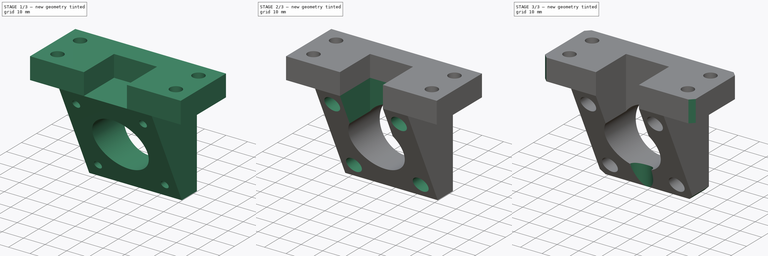
[diagram: build sequence overview — one tinted view per stage of 3, left to right]
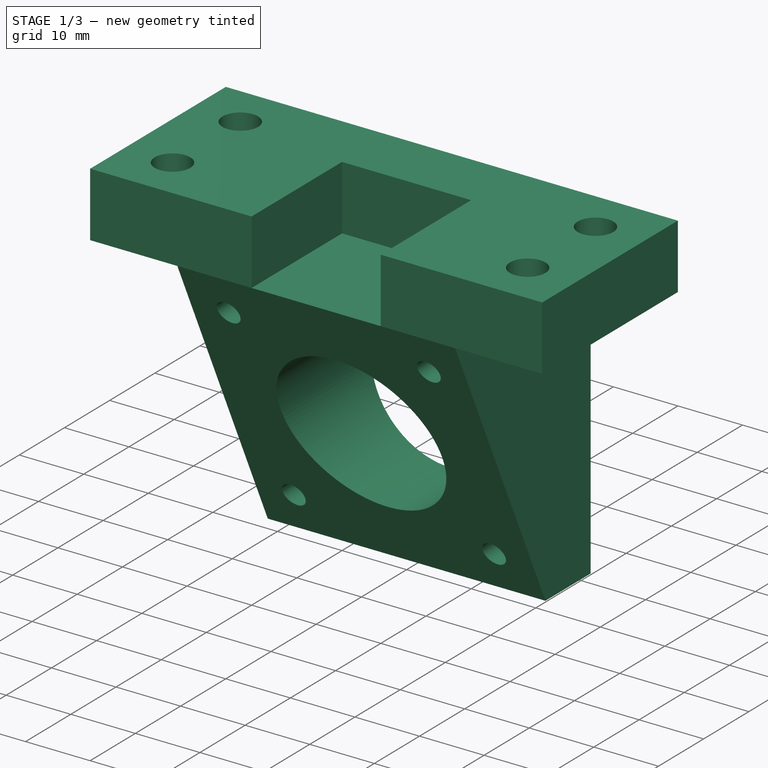
[diagram: stage 1 of 3 — iso view after this stage's code; geometry added in this stage tinted green]
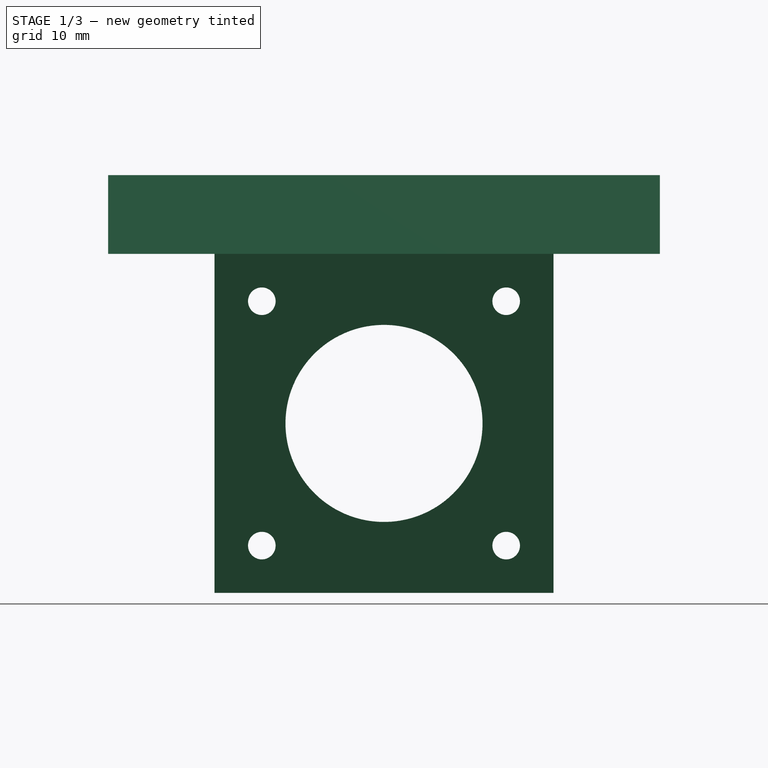
[diagram: stage 1 of 3 — front view after this stage's code; geometry added in this stage tinted green]
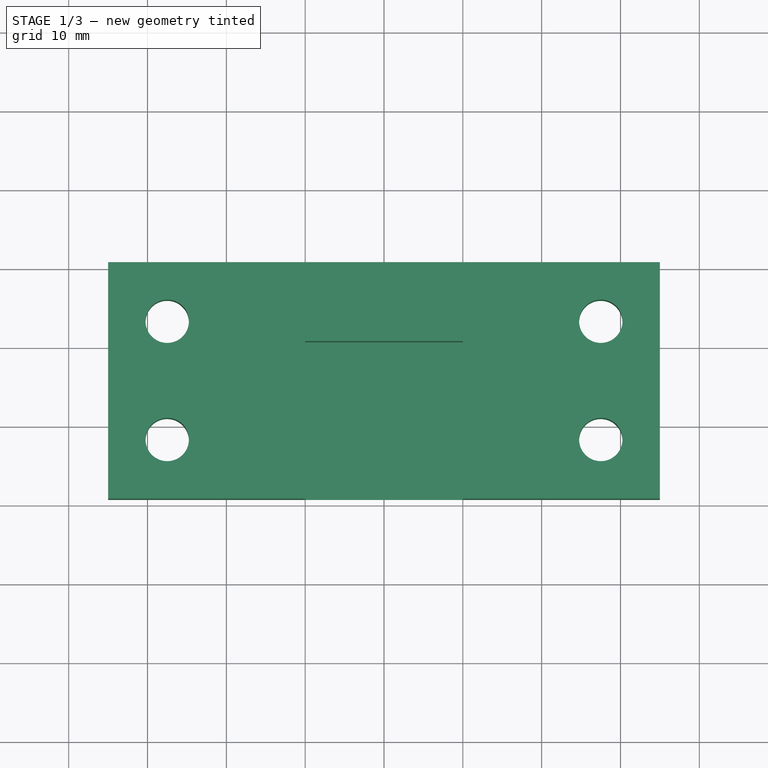
[diagram: stage 1 of 3 — top view after this stage's code; geometry added in this stage tinted green]
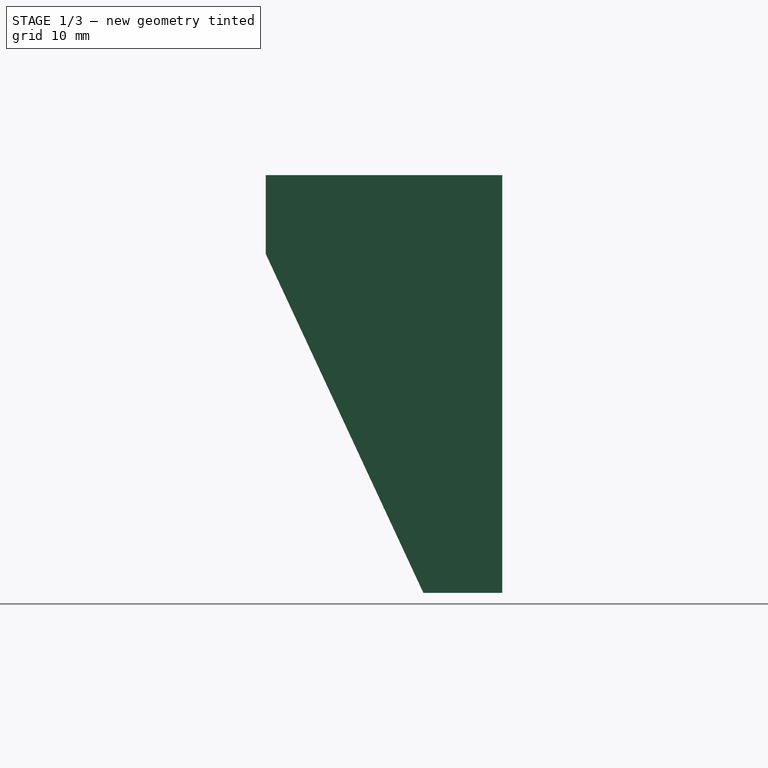
[diagram: stage 1 of 3 — right view after this stage's code; geometry added in this stage tinted green]
FCSTD DOCUMENT  (FreeCAD 0.19R24291 (Git))
Label: FDM-0006_x-motor-mount
License: All rights reserved
LicenseURL: http://en.wikipedia.org/wiki/All_rights_reserved
objects: Sketcher::SketchObject×6, PartDesign::Plane×5, PartDesign::Pocket×5, PartDesign::Pad×2, PartDesign::Chamfer×1, Part::Part2DObjectPython×1, PartDesign::Body×1
note: 29 computed .brp shape members not serialized (recipe doc carries the construction recipe); baked Part::Feature solids carry a one-line shape summary decoded from their .brp

FEATURE [Sketcher::SketchObject] Sketch
  FullyConstrained = true
  MapMode = 5
  Support = -> [XY_Plane]
  sketch-geometry (14):
    g0: LineSegment StartX=-35 StartY=0 StartZ=0 EndX=-10 EndY=0 EndZ=0
    g1: LineSegment StartX=35 StartY=0 StartZ=0 EndX=35 EndY=30 EndZ=0
    g2: LineSegment StartX=35 StartY=30 StartZ=0 EndX=-35 EndY=30 EndZ=0
    g3: LineSegment StartX=-35 StartY=30 StartZ=0 EndX=-35 EndY=0 EndZ=0
    g4: LineSegment StartX=-27.5 StartY=30 StartZ=0 EndX=-27.5 EndY=0 EndZ=0
    g5: LineSegment StartX=27.5 StartY=30 StartZ=0 EndX=27.5 EndY=0 EndZ=0
    g6: Circle CenterX=-27.5 CenterY=22.5 CenterZ=0 NormalX=0 NormalY=0 NormalZ=1 AngleXU=0 Radius=2.75
    g7: Circle CenterX=-27.5 CenterY=7.5 CenterZ=0 NormalX=0 NormalY=0 NormalZ=1 AngleXU=0 Radius=2.75
    g8: Circle CenterX=27.5 CenterY=22.5 CenterZ=0 NormalX=0 NormalY=0 NormalZ=1 AngleXU=0 Radius=2.75
    g9: Circle CenterX=27.5 CenterY=7.5 CenterZ=0 NormalX=0 NormalY=0 NormalZ=1 AngleXU=0 Radius=2.75
    g10: LineSegment StartX=-10 StartY=0 StartZ=0 EndX=-10 EndY=20 EndZ=0
    g11: LineSegment StartX=-10 StartY=20 StartZ=0 EndX=10 EndY=20 EndZ=0
    g12: LineSegment StartX=10 StartY=20 StartZ=0 EndX=10 EndY=0 EndZ=0
    g13: LineSegment StartX=10 StartY=0 StartZ=0 EndX=35 EndY=0 EndZ=0
  constraints (41):
    c: Coincident(g13,g1)
    c: Coincident(g1,g2)
    c: Coincident(g2,g3)
    c: Coincident(g3,g0)
    c: Horizontal(g2)
    c: Vertical(g1)
    c: Vertical(g3)
    c: PointOnObject(g0,g-1)
    c: Symmetric(g0,g13,g-2)
    c: Distance(g1) = 30
    c: PointOnObject(g4,g2)
    c: PointOnObject(g4,g0)
    c: Vertical(g4)
    c: PointOnObject(g5,g2)
    c: PointOnObject(g5,g0)
    c: Vertical(g5)
    c: PointOnObject(g6,g4)
    c: PointOnObject(g7,g4)
    c: PointOnObject(g8,g5)
    c: PointOnObject(g9,g5)
    c: Distance(g2,g4) = 7.5
    c: Distance(g6,g2) = 7.5
    c: Distance(g7,g0) = 7.5
    c: Diameter(g7) = 5.5
    c: Diameter(g6) = 5.5
    c: Diameter(g8) = 5.5
    c: Diameter(g9) = 5.5
    c: Distance(g5,g1) = 7.5
    c: Distance(g8,g2) = 7.5
    c: Distance(g9,g0) = 7.5
    c: Vertical(g10)
    c: Coincident(g10,g11)
    c: Coincident(g11,g12)
    c: Vertical(g12)
    c: Coincident(g0,g10)
    c: Coincident(g13,g12)
    c: Tangent(g0,g13)
    c: DistanceX(g11,g11) = 20
    c: DistanceY(g10,g10) = 20
    c: Symmetric(g10,g11,g-2)
    c: DistanceX(g2,g2) = 70
FEATURE [PartDesign::Pad] Pad
  AllowMultiFace = false
  Direction = (1,1,1)
  Length = 10
  Length2 = 100
  Profile = -> Sketch
  Type = 0
FEATURE [PartDesign::Plane] DatumPlane
  Length = 83.7986
  MapMode = 5
  Placement = pos=(0,30,0) rot=(0,0.707107,0.707107;3.14159rad)
  ResizeMode = 0
  Support = -> [Pad]
  Width = 81.7986
FEATURE [Sketcher::SketchObject] Sketch001
  FullyConstrained = true
  MapMode = 5
  Placement = pos=(0,30,0) rot=(0,0.707107,0.707107;3.14159rad)
  Support = -> [DatumPlane]
  sketch-geometry (14):
    g0: LineSegment StartX=-21.5 StartY=0 StartZ=0 EndX=21.5 EndY=0 EndZ=0
    g1: LineSegment StartX=21.5 StartY=0 StartZ=0 EndX=21.5 EndY=-43 EndZ=0
    g2: LineSegment StartX=21.5 StartY=-43 StartZ=0 EndX=-21.5 EndY=-43 EndZ=0
    g3: LineSegment StartX=-21.5 StartY=-43 StartZ=0 EndX=-21.5 EndY=0 EndZ=0
    g4: LineSegment StartX=-15.5 StartY=-6 StartZ=0 EndX=15.5 EndY=-6 EndZ=0
    g5: LineSegment StartX=15.5 StartY=-6 StartZ=0 EndX=15.5 EndY=-37 EndZ=0
    g6: LineSegment StartX=15.5 StartY=-37 StartZ=0 EndX=-15.5 EndY=-37 EndZ=0
    g7: LineSegment StartX=-15.5 StartY=-37 StartZ=0 EndX=-15.5 EndY=-6 EndZ=0
    g8: LineSegment StartX=-21.5 StartY=-21.5 StartZ=0 EndX=21.5 EndY=-21.5 EndZ=0
    g9: Circle CenterX=0 CenterY=-21.5 CenterZ=0 NormalX=0 NormalY=0 NormalZ=1 AngleXU=0 Radius=12.5
    g10: Circle CenterX=-15.5 CenterY=-6 CenterZ=0 NormalX=0 NormalY=0 NormalZ=1 AngleXU=0 Radius=1.75
    g11: Circle CenterX=15.5 CenterY=-6 CenterZ=0 NormalX=0 NormalY=0 NormalZ=1 AngleXU=0 Radius=1.75
    g12: Circle CenterX=-15.5 CenterY=-37 CenterZ=0 NormalX=0 NormalY=0 NormalZ=1 AngleXU=0 Radius=1.75
    g13: Circle CenterX=15.5 CenterY=-37 CenterZ=0 NormalX=0 NormalY=0 NormalZ=1 AngleXU=0 Radius=1.75
  constraints (35):
    c: Coincident(g0,g1)
    c: Coincident(g1,g2)
    c: Coincident(g2,g3)
    c: Coincident(g3,g0)
    c: Horizontal(g2)
    c: Vertical(g1)
    c: Vertical(g3)
    c: Distance(g1) = 43
    c: Distance(g0) = 43
    c: PointOnObject(g-1,g0)
    c: Symmetric(g0,g0,g-2)
    c: Coincident(g4,g5)
    c: Coincident(g5,g6)
    c: Coincident(g6,g7)
    c: Coincident(g7,g4)
    c: Horizontal(g6)
    c: Vertical(g5)
    c: Distance(g5) = 31
    c: Distance(g4) = 31
    c: PointOnObject(g8,g3)
    c: PointOnObject(g8,g1)
    c: Symmetric(g0,g2,g8)
    c: Symmetric(g4,g4,g-2)
    c: Symmetric(g4,g6,g8)
    c: PointOnObject(g9,g-2)
    c: PointOnObject(g9,g8)
    c: Diameter(g9) = 25
    c: Coincident(g10,g4)
    c: Coincident(g11,g4)
    c: Coincident(g12,g6)
    c: Coincident(g13,g5)
    c: Diameter(g10) = 3.5
    c: Diameter(g11) = 3.5
    c: Diameter(g12) = 3.5
    c: Diameter(g13) = 3.5
FEATURE [PartDesign::Pad] Pad001
  AllowMultiFace = false
  BaseFeature = -> Pad
  Direction = (1,1,1)
  Length = 30
  Length2 = 100
  Profile = -> Sketch001
  Reversed = true
  Type = 0
FEATURE [PartDesign::Plane] DatumPlane001
  Length = 67.2311
  MapMode = 5
  Placement = pos=(21.5,0,0) rot=(0.57735,0.57735,0.57735;2.0944rad)
  ResizeMode = 0
  Support = -> [Pad001]
  Width = 80.2311
FEATURE [Sketcher::SketchObject] Sketch002
  FullyConstrained = true
  MapMode = 5
  Placement = pos=(21.5,0,0) rot=(0.57735,0.57735,0.57735;2.0944rad)
  Support = -> [DatumPlane001]
  sketch-geometry (3):
    g0: LineSegment StartX=0 StartY=0 StartZ=0 EndX=20 EndY=-43 EndZ=0
    g1: LineSegment StartX=20 StartY=-43 StartZ=0 EndX=0 EndY=-43 EndZ=0
    g2: LineSegment StartX=0 StartY=-43 StartZ=0 EndX=0 EndY=0 EndZ=0
  constraints (8):
    c: Coincident(g-1,g0)
    c: Coincident(g0,g1)
    c: PointOnObject(g1,g-2)
    c: Horizontal(g1)
    c: Coincident(g1,g2)
    c: Coincident(g2,g0)
    c: DistanceY(g2,g2) = 43
    c: DistanceX(g1,g1) = 20
FEATURE [PartDesign::Pocket] Pocket
  AllowMultiFace = false
  BaseFeature = -> Pad001
  Length = 43
  Length2 = 100
  Profile = -> Sketch002
  Type = 0
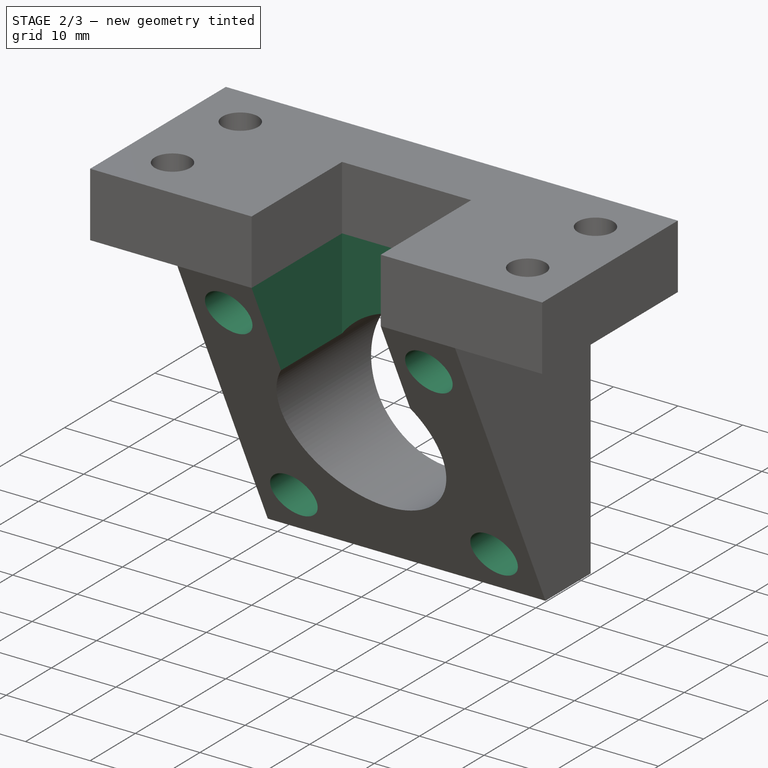
[diagram: stage 2 of 3 — iso view after this stage's code; geometry added in this stage tinted green]
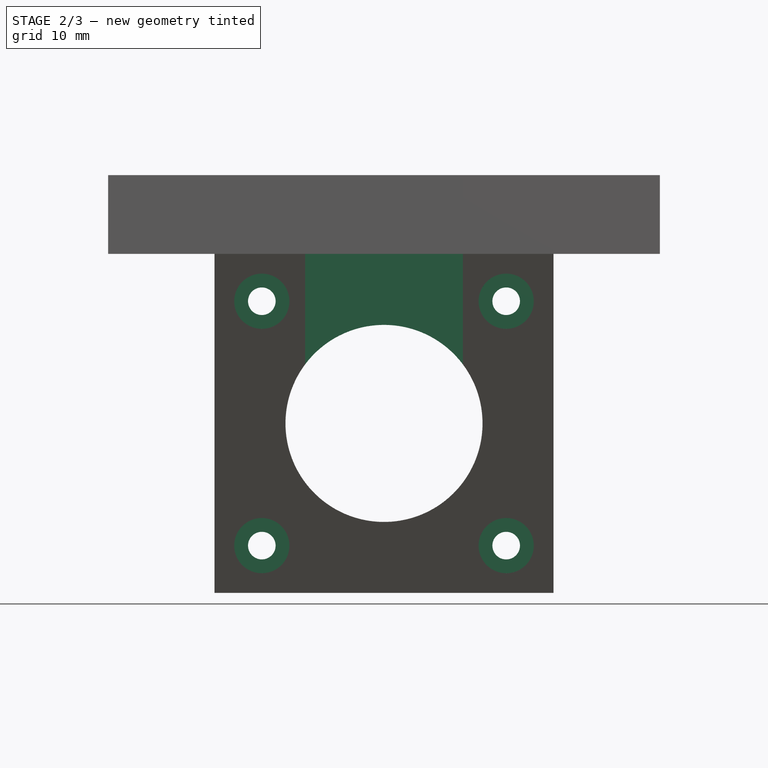
[diagram: stage 2 of 3 — front view after this stage's code; geometry added in this stage tinted green]
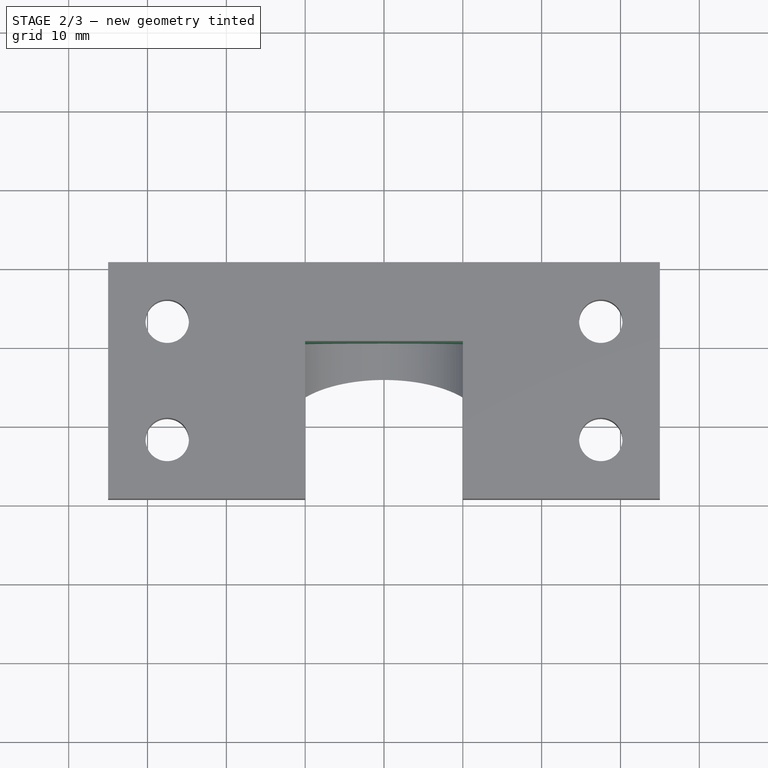
[diagram: stage 2 of 3 — top view after this stage's code; geometry added in this stage tinted green]
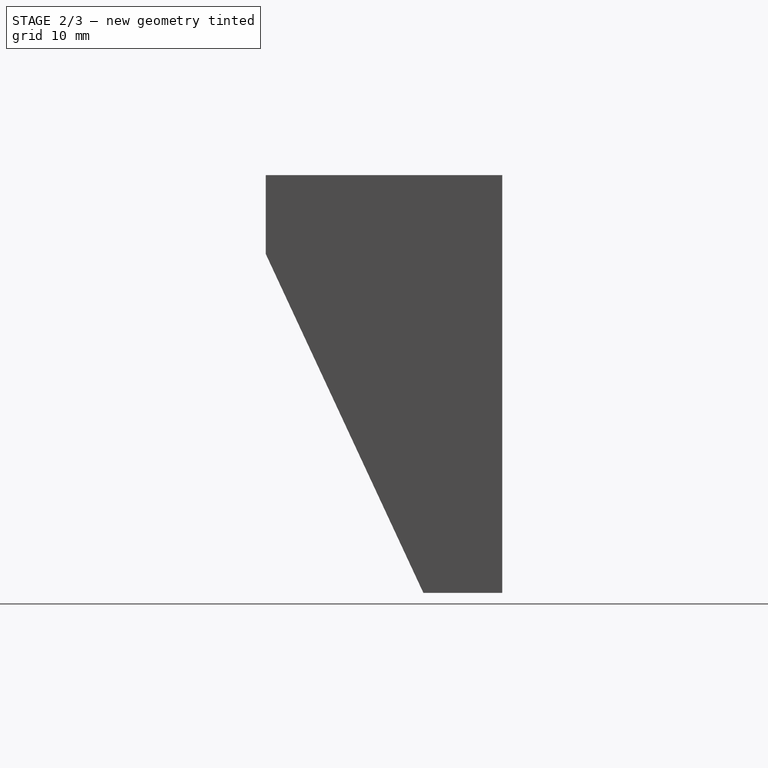
[diagram: stage 2 of 3 — right view after this stage's code; geometry added in this stage tinted green]
FEATURE [PartDesign::Plane] DatumPlane002
  Length = 83.7986
  MapMode = 5
  Placement = pos=(0,0,0) rot=(1,0,0;1.5708rad)
  ResizeMode = 0
  Support = -> [Pocket]
  Width = 81.7986
FEATURE [Sketcher::SketchObject] Sketch003
  ExternalGeometry = -> [Pocket]
  FullyConstrained = true
  MapMode = 5
  Placement = pos=(0,0,0) rot=(1,0,0;1.5708rad)
  Support = -> [DatumPlane002]
  sketch-geometry (4):
    g0: Circle CenterX=-15.5 CenterY=-6 CenterZ=0 NormalX=0 NormalY=0 NormalZ=1 AngleXU=0 Radius=3.5
    g1: Circle CenterX=-15.5 CenterY=-37 CenterZ=0 NormalX=0 NormalY=0 NormalZ=1 AngleXU=0 Radius=3.5
    g2: Circle CenterX=15.5 CenterY=-37 CenterZ=0 NormalX=0 NormalY=0 NormalZ=1 AngleXU=0 Radius=3.5
    g3: Circle CenterX=15.5 CenterY=-6 CenterZ=0 NormalX=0 NormalY=0 NormalZ=1 AngleXU=0 Radius=3.5
  constraints (8):
    c: Diameter(g0) = 7
    c: Diameter(g3) = 7
    c: Diameter(g1) = 7
    c: Diameter(g2) = 7
    c: Coincident(g-3,g0)
    c: Coincident(g3,g-6)
    c: Coincident(g-4,g1)
    c: Coincident(g-5,g2)
FEATURE [PartDesign::Pocket] Pocket001
  AllowMultiFace = false
  BaseFeature = -> Pocket
  Length = 25
  Length2 = 100
  Profile = -> Sketch003
  Type = 0
FEATURE [Sketcher::SketchObject] Sketch004
  ExternalGeometry = -> [Pocket001]
  FullyConstrained = true
  MapMode = 5
  Support = -> [XY_Plane]
  sketch-geometry (4):
    g0: LineSegment StartX=-10 StartY=20 StartZ=0 EndX=-10 EndY=0 EndZ=0
    g1: LineSegment StartX=-10 StartY=0 StartZ=0 EndX=10 EndY=0 EndZ=0
    g2: LineSegment StartX=10 StartY=0 StartZ=0 EndX=10 EndY=20 EndZ=0
    g3: LineSegment StartX=10 StartY=20 StartZ=0 EndX=-10 EndY=20 EndZ=0
  constraints (10):
    c: Coincident(g0,g-3)
    c: PointOnObject(g0,g-1)
    c: Vertical(g0)
    c: Coincident(g0,g1)
    c: PointOnObject(g1,g-1)
    c: Coincident(g1,g2)
    c: Coincident(g2,g-4)
    c: Vertical(g2)
    c: Coincident(g2,g3)
    c: Coincident(g3,g0)
FEATURE [PartDesign::Pocket] Pocket002
  AllowMultiFace = false
  BaseFeature = -> Pocket001
  Length = 14
  Length2 = 100
  Profile = -> Sketch004
  Type = 0
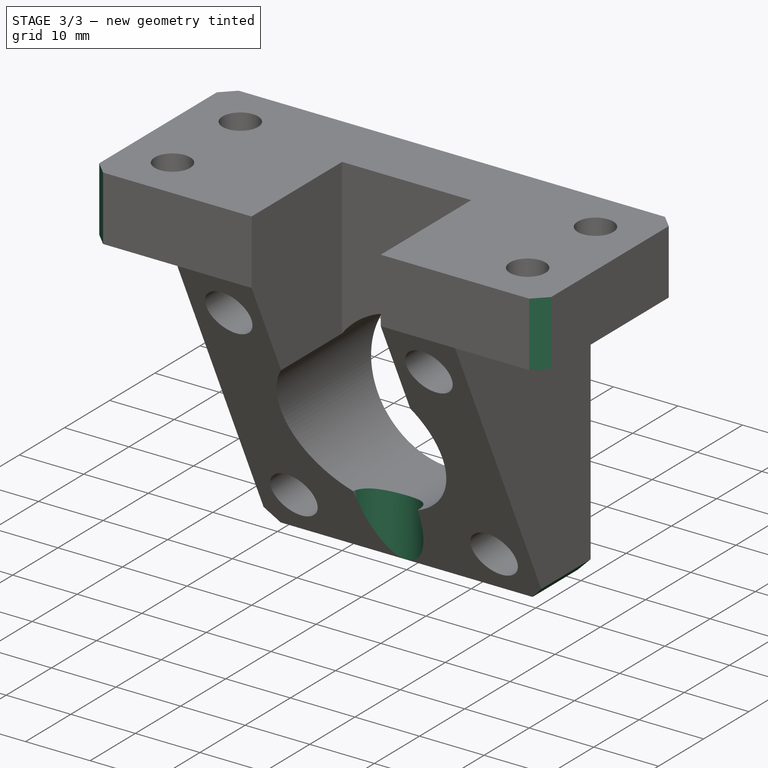
[diagram: stage 3 of 3 — iso view after this stage's code; geometry added in this stage tinted green]
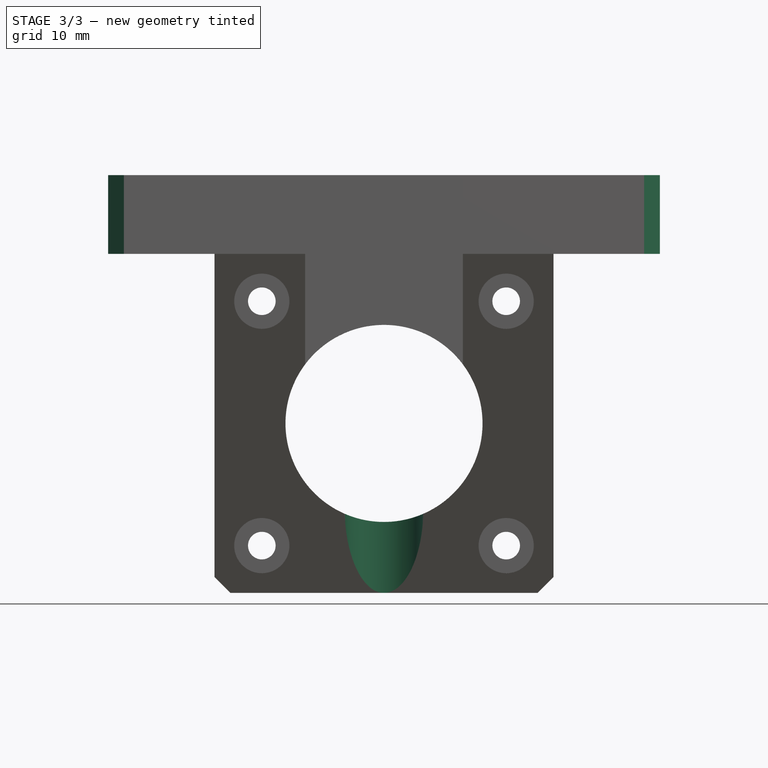
[diagram: stage 3 of 3 — front view after this stage's code; geometry added in this stage tinted green]
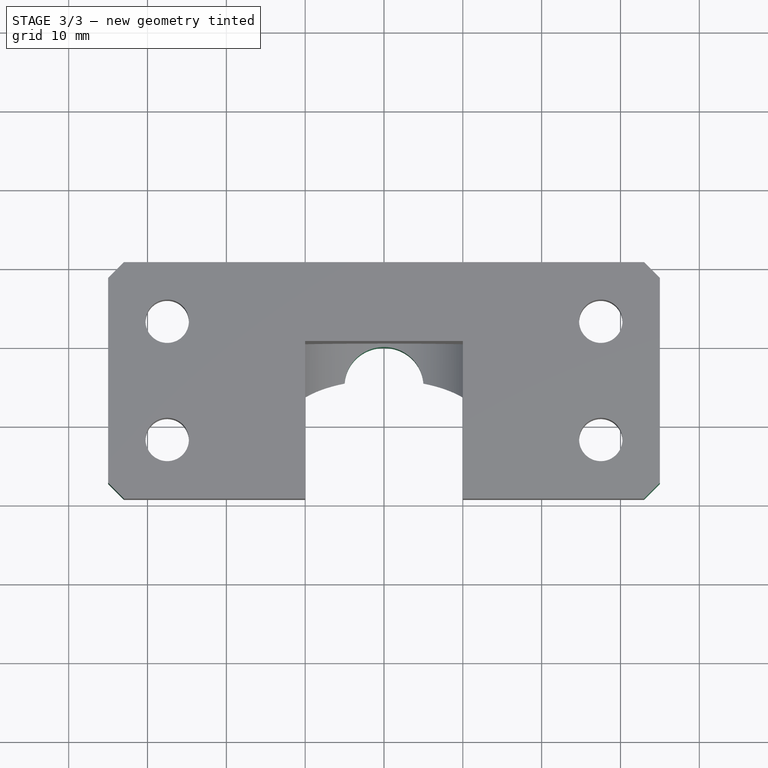
[diagram: stage 3 of 3 — top view after this stage's code; geometry added in this stage tinted green]
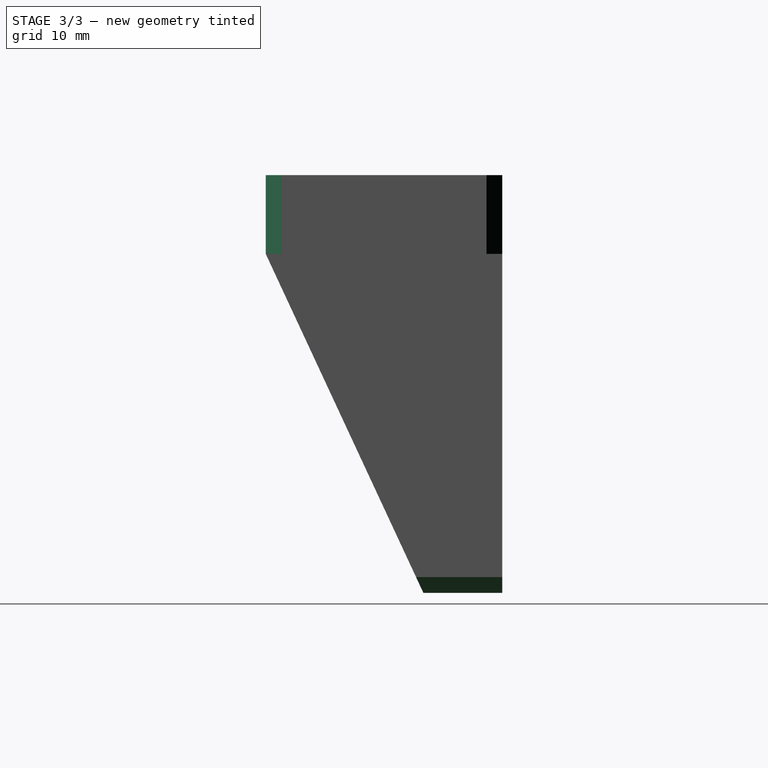
[diagram: stage 3 of 3 — right view after this stage's code; geometry added in this stage tinted green]
FEATURE [PartDesign::Chamfer] Chamfer
  Angle = 45
  Base = -> Pocket002 [Edge37,Edge6,Edge53,Edge45,Edge49,Edge1]
  BaseFeature = -> Pocket002
  ChamferType = 0
  FlipDirection = false
  Size = 2
  Size2 = 1
  SupportTransform = false
FEATURE [Sketcher::SketchObject] Sketch005
  FullyConstrained = true
  MapMode = 5
  Support = -> [XY_Plane]
  sketch-geometry (1):
    g0: Circle CenterX=0 CenterY=15 CenterZ=0 NormalX=0 NormalY=0 NormalZ=1 AngleXU=0 Radius=5
  constraints (3):
    c: PointOnObject(g0,g-2)
    c: Diameter(g0) = 10
    c: DistanceY(g-1,g0) = 15
FEATURE [PartDesign::Pocket] Pocket003
  AllowMultiFace = false
  BaseFeature = -> Chamfer
  Length = 43
  Length2 = 100
  Profile = -> Sketch005
  Type = 0
FEATURE [PartDesign::Plane] DatumPlane003
  Length = 82.4097
  MapMode = 5
  Placement = pos=(0,-9.5e-15,-43) rot=(1,0,0;3.14159rad)
  ResizeMode = 0
  Support = -> [Pocket003]
  Width = 67.4097
FEATURE [Part::Part2DObjectPython] ShapeString  label="PN"  # Draft 2D object (typed FeaturePython)
  AttachmentOffset = pos=(18.5,-23,0) rot=(0,0,1;3.14159rad)
  FontFile = ../../lib/fonts/RobotoMono-VariableFont_weight.ttf
  MapMode = 5
  Placement = pos=(18.5,23,-43) rot=(0,-1,0;3.14159rad)
  Size = 5
  String = FDM-0006-01
  Support = -> [DatumPlane003]
  Tracking = 0
FEATURE [PartDesign::Pocket] Pocket004
  AllowMultiFace = false
  BaseFeature = -> Pocket003
  Length = 1
  Length2 = 100
  Midplane = true
  Profile = -> ShapeString
  Reversed = true
  Type = 0
FEATURE [PartDesign::Plane] DatumPlane004  label="PrintPlane"
  Length = 83.7986
  MapMode = 5
  Placement = pos=(0,30,-7.5e-15) rot=(0,0.707107,0.707107;3.14159rad)
  ResizeMode = 0
  Support = -> [Pocket003]
  Width = 81.7986
FEATURE [PartDesign::Body] Body
  Group = -> [Sketch,Pad,DatumPlane,Sketch001,Pad001,DatumPlane001,Sketch002,Pocket,DatumPlane002,Sketch003,Pocket001,Sketch004,Pocket002,Chamfer,Sketch005,Pocket003,DatumPlane003,ShapeString,Pocket004,DatumPlane004]
  Origin = -> Origin
  Tip = -> Pocket004
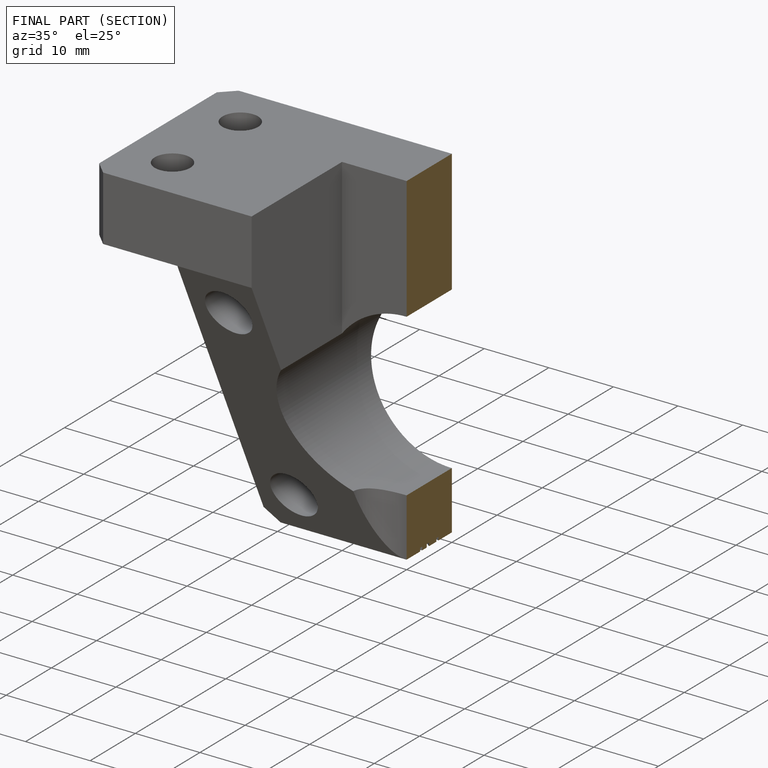
[diagram: finished part — half-section view (interior)]
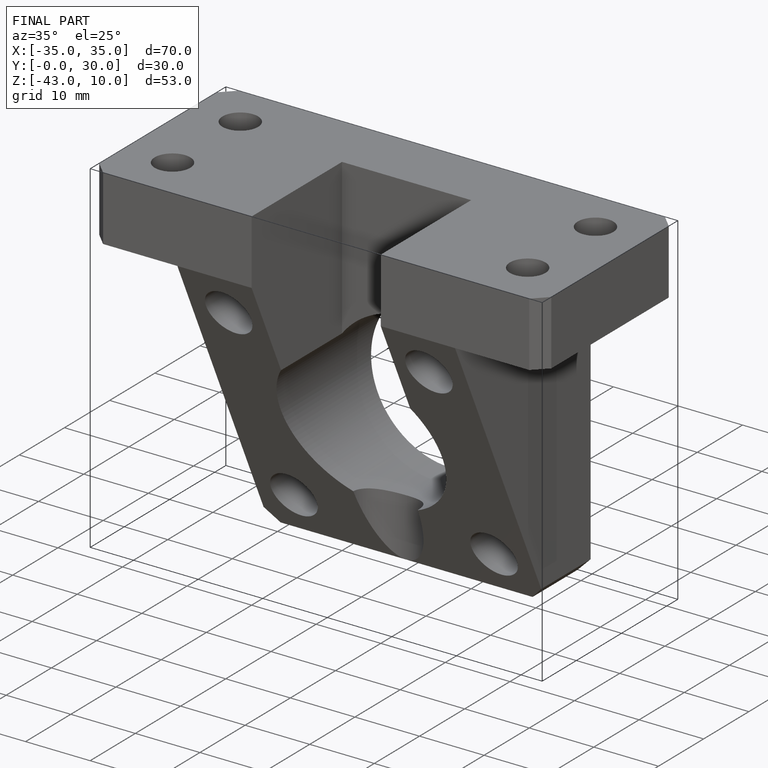
[diagram: finished part — iso view with bounding-box wireframe]
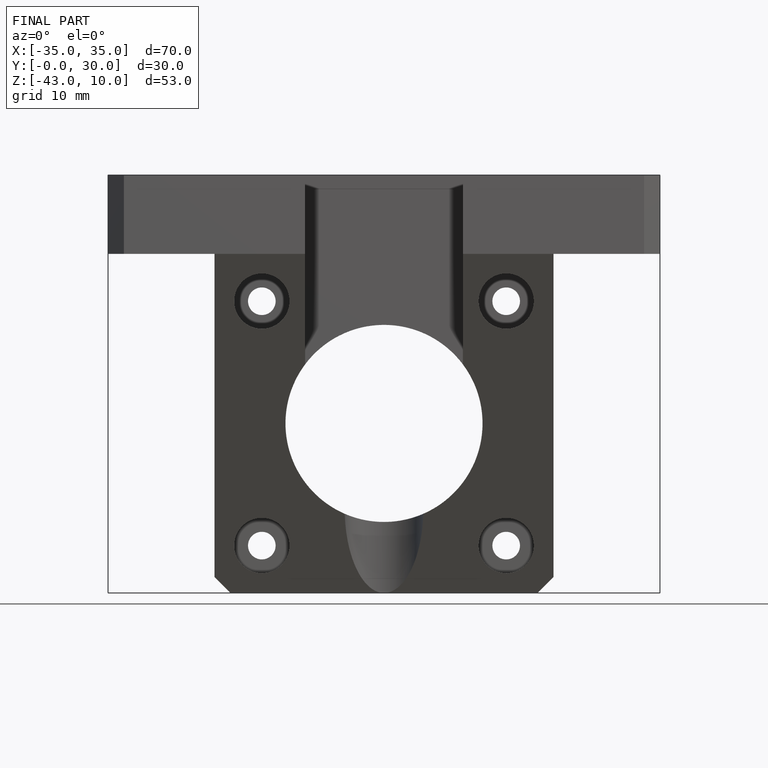
[diagram: finished part — front view with bounding-box wireframe]
